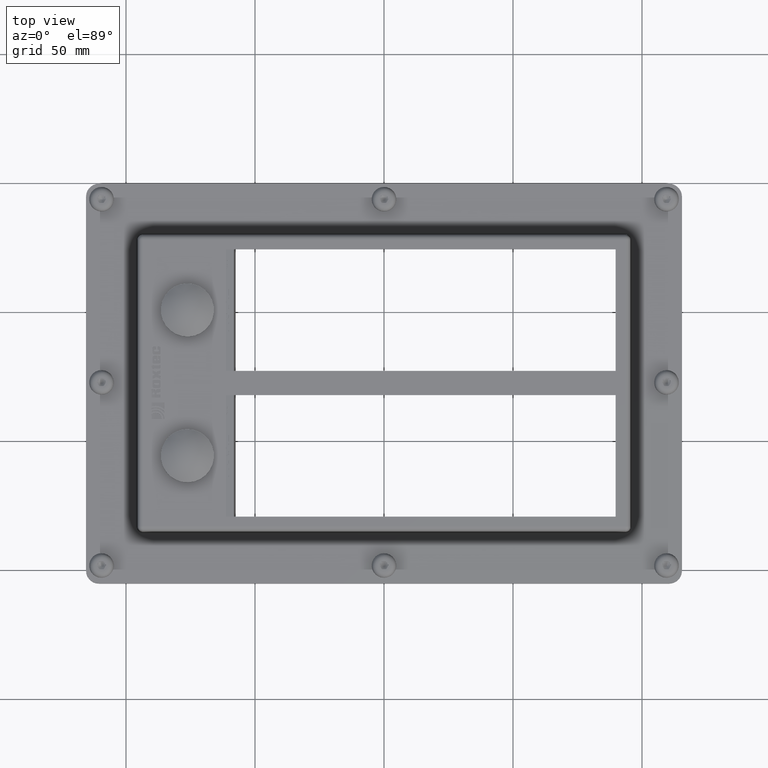
[diagram: clean part render]
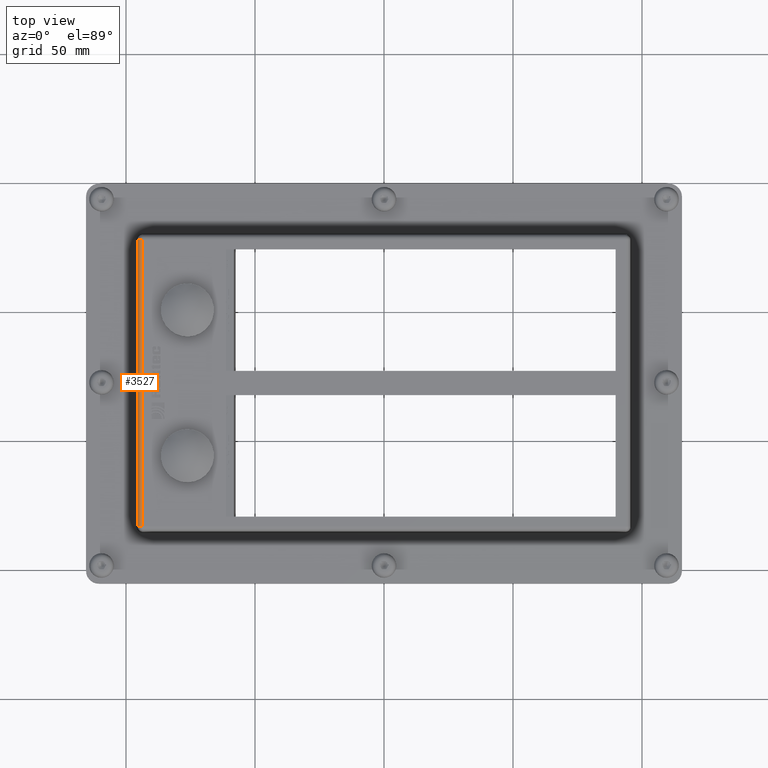
[diagram: same view with one face highlighted and labeled with its STEP entity id]
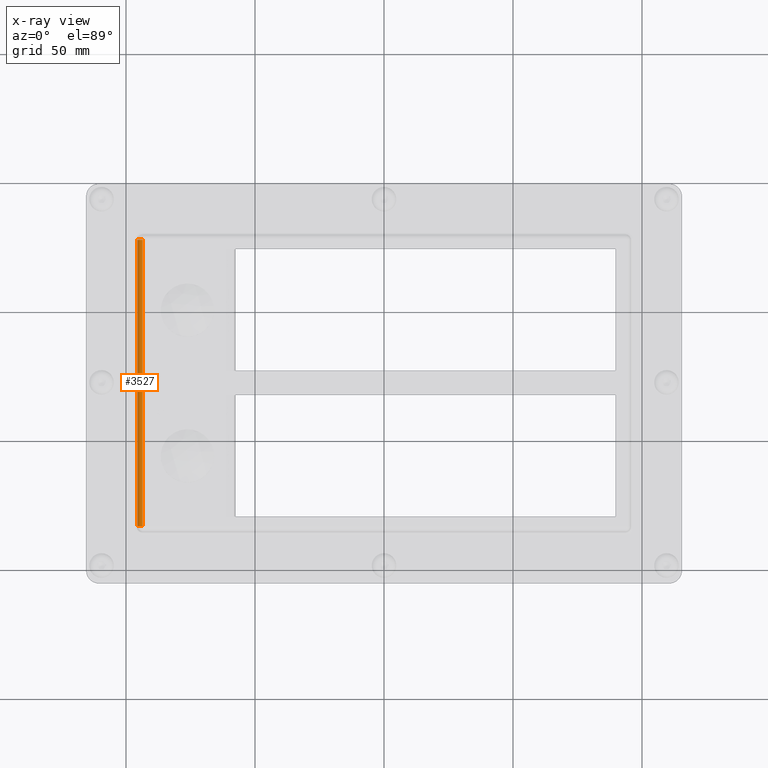
[diagram: x-ray of the same camera — body ghosted, the highlighted face saturated]
A machine part, top view. The second image highlights one B-rep face of the part: STEP entity #3527.
The next image is the same camera in x-ray: the body ghosted, the highlighted face saturated — about 0% of this face is hidden behind the body in this view.
In plain terms, the highlighted cylindrical surface (edge-blend (fillet) strip) has radius 2 mm, axis along (0, 1, 0).
Its self-contained STEP definition (entity closure, byte-faithful):
#945=CARTESIAN_POINT('',(-95.517301424938438,27.267377578810049,31.017453070996758));
#946=VERTEX_POINT('',#945);
#970=CARTESIAN_POINT('',(-95.517301424938438,-83.767377578810084,31.017453070996758));
#971=VERTEX_POINT('',#970);
#978=CARTESIAN_POINT('',(-95.517301424938438,27.267377578810049,31.017453070996758));
#979=DIRECTION('',(0.0,-1.0,0.0));
#980=VECTOR('',#979,111.03475515762014);
#981=LINE('',#978,#980);
#982=EDGE_CURVE('',#946,#971,#981,.T.);
#3195=CARTESIAN_POINT('',(-93.517377578810084,-83.767377578810084,33.000000000000007));
#3196=VERTEX_POINT('',#3195);
#3204=CARTESIAN_POINT('',(-93.517377578810084,-83.767377578810084,31.000000000000007));
#3205=DIRECTION('',(0.0,-1.0,0.0));
#3206=DIRECTION('',(-0.704014724455969,0.0,0.710185375623285));
#3207=AXIS2_PLACEMENT_3D('',#3204,#3205,#3206);
#3208=CIRCLE('',#3207,1.999999999999994);
#3209=EDGE_CURVE('',#3196,#971,#3208,.T.);
#3269=CARTESIAN_POINT('',(-93.517377578810127,27.267377578810049,33.000000000000007));
#3270=VERTEX_POINT('',#3269);
#3271=CARTESIAN_POINT('',(-93.517377578810127,27.267377578810049,31.000000000000007));
#3272=DIRECTION('',(0.0,1.0,0.0));
#3273=DIRECTION('',(-0.704014724455969,0.0,0.710185375623285));
#3274=AXIS2_PLACEMENT_3D('',#3271,#3272,#3273);
#3275=CIRCLE('',#3274,1.999999999999994);
#3276=EDGE_CURVE('',#946,#3270,#3275,.T.);
#3511=CARTESIAN_POINT('',(-93.517377578810084,-89.31911533669107,31.000000000000007));
#3512=DIRECTION('',(0.0,1.0,0.0));
#3513=DIRECTION('',(-0.704014724455968,0.0,0.710185375623285));
#3514=AXIS2_PLACEMENT_3D('',#3511,#3512,#3513);
#3515=CYLINDRICAL_SURFACE('',#3514,2.0);
#3516=ORIENTED_EDGE('',*,*,#3209,.F.);
#3517=CARTESIAN_POINT('',(-93.517377578810084,-83.767377578810084,33.000000000000007));
#3518=DIRECTION('',(0.0,1.0,0.0));
#3519=VECTOR('',#3518,111.03475515762013);
#3520=LINE('',#3517,#3519);
#3521=EDGE_CURVE('',#3196,#3270,#3520,.T.);
#3522=ORIENTED_EDGE('',*,*,#3521,.T.);
#3523=ORIENTED_EDGE('',*,*,#3276,.F.);
#3524=ORIENTED_EDGE('',*,*,#982,.T.);
#3525=EDGE_LOOP('',(#3516,#3522,#3523,#3524));
#3526=FACE_OUTER_BOUND('',#3525,.T.);
#3527=ADVANCED_FACE('',(#3526),#3515,.T.);